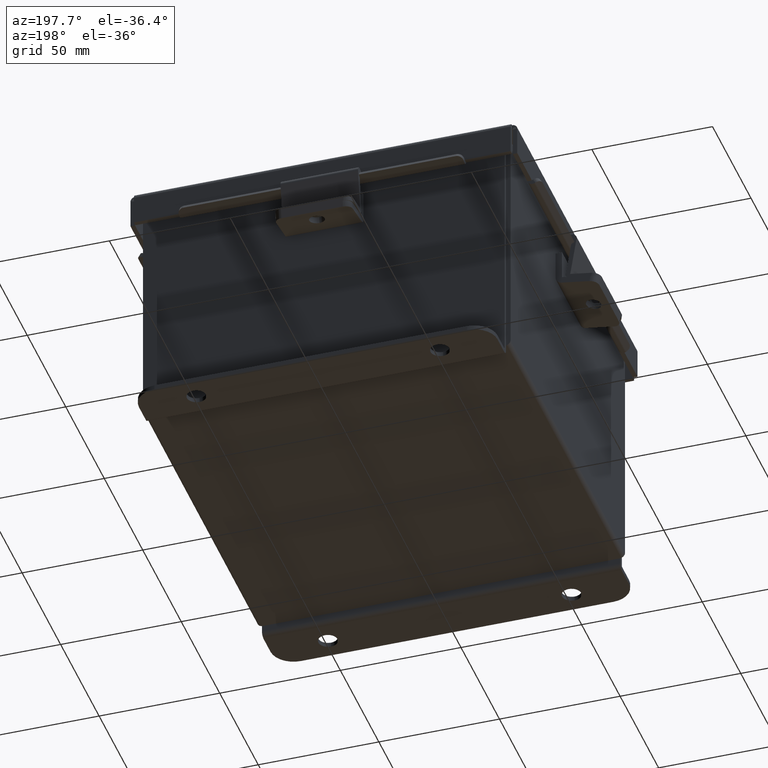
[diagram: clean part render]
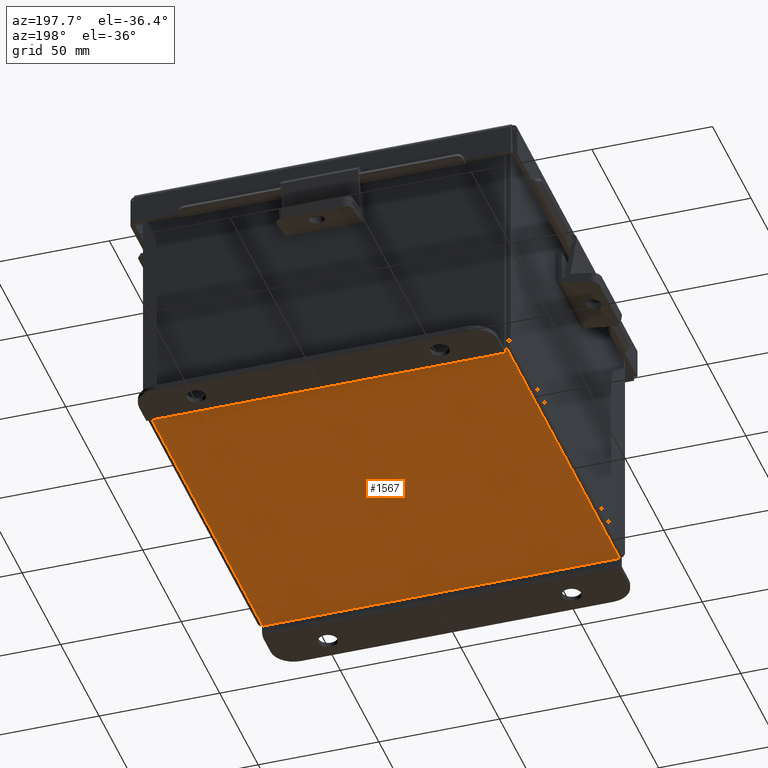
[diagram: same view with one face highlighted and labeled with its STEP entity id]
A machine part, auxiliary view. The second image highlights one B-rep face of the part: STEP entity #1567.
In plain terms, the highlighted planar face has unit normal (0, 0, -1).
Its self-contained STEP definition (entity closure, byte-faithful):
#404 = CARTESIAN_POINT ( 'NONE',  ( -2.912299999999998800, -2.925299999999999600, -0.07469999999999943400 ) ) ;
#439 = ORIENTED_EDGE ( 'NONE', *, *, #6130, .T. ) ;
#718 = DIRECTION ( 'NONE',  ( 0.0000000000000000000, 0.0000000000000000000, -1.000000000000000000 ) ) ;
#832 = ORIENTED_EDGE ( 'NONE', *, *, #4310, .F. ) ;
#1449 = VECTOR ( 'NONE', #8382, 39.37007874015748100 ) ;
#1567 = ADVANCED_FACE ( 'NONE', ( #1693 ), #1916, .T. ) ;
#1693 = FACE_OUTER_BOUND ( 'NONE', #4345, .T. ) ;
#1828 = VECTOR ( 'NONE', #4315, 39.37007874015748100 ) ;
#1899 = EDGE_CURVE ( 'NONE', #8961, #3152, #7471, .T. ) ;
#1916 = PLANE ( 'NONE',  #7822 ) ;
#2221 = CARTESIAN_POINT ( 'NONE',  ( 0.0000000000000000000, 0.0000000000000000000, -0.07470000000000000300 ) ) ;
#2458 = CARTESIAN_POINT ( 'NONE',  ( 2.912300000000001000, -2.925299999999999100, -0.07470000000000000300 ) ) ;
#3152 = VERTEX_POINT ( 'NONE', #8850 ) ;
#3590 = LINE ( 'NONE', #404, #8598 ) ;
#3939 = CARTESIAN_POINT ( 'NONE',  ( 2.912300000000001000, 2.925300000000000500, -0.07469999999999994700 ) ) ;
#4096 = LINE ( 'NONE', #8411, #1449 ) ;
#4284 = VECTOR ( 'NONE', #9183, 39.37007874015748100 ) ;
#4310 = EDGE_CURVE ( 'NONE', #9148, #8816, #4096, .T. ) ;
#4315 = DIRECTION ( 'NONE',  ( -1.000000000000000000, -0.0000000000000000000, -0.0000000000000000000 ) ) ;
#4345 = EDGE_LOOP ( 'NONE', ( #9593, #8355, #832, #439 ) ) ;
#5581 = DIRECTION ( 'NONE',  ( -0.0000000000000000000, 1.000000000000000000, -8.208677865577646300E-017 ) ) ;
#5850 = DIRECTION ( 'NONE',  ( -1.000000000000000000, 0.0000000000000000000, -0.0000000000000000000 ) ) ;
#6011 = EDGE_CURVE ( 'NONE', #8961, #8816, #9185, .T. ) ;
#6130 = EDGE_CURVE ( 'NONE', #9148, #3152, #3590, .T. ) ;
#6177 = CARTESIAN_POINT ( 'NONE',  ( -2.912299999999998800, -2.925299999999999100, -0.07469999999999943400 ) ) ;
#6704 = CARTESIAN_POINT ( 'NONE',  ( -2.999999999999999100, 2.925300000000000500, -0.07470000000000000300 ) ) ;
#7471 = LINE ( 'NONE', #6704, #1828 ) ;
#7822 = AXIS2_PLACEMENT_3D ( 'NONE', #2221, #718, #5850 ) ;
#8355 = ORIENTED_EDGE ( 'NONE', *, *, #6011, .T. ) ;
#8382 = DIRECTION ( 'NONE',  ( 1.000000000000000000, 0.0000000000000000000, 0.0000000000000000000 ) ) ;
#8411 = CARTESIAN_POINT ( 'NONE',  ( -2.999999999999999100, -2.925299999999999600, -0.07470000000000000300 ) ) ;
#8598 = VECTOR ( 'NONE', #5581, 39.37007874015748100 ) ;
#8816 = VERTEX_POINT ( 'NONE', #2458 ) ;
#8850 = CARTESIAN_POINT ( 'NONE',  ( -2.912299999999998800, 2.925300000000000500, -0.07470000000000000300 ) ) ;
#8961 = VERTEX_POINT ( 'NONE', #9232 ) ;
#9148 = VERTEX_POINT ( 'NONE', #6177 ) ;
#9183 = DIRECTION ( 'NONE',  ( -0.0000000000000000000, -1.000000000000000000, -0.0000000000000000000 ) ) ;
#9185 = LINE ( 'NONE', #3939, #4284 ) ;
#9232 = CARTESIAN_POINT ( 'NONE',  ( 2.912300000000001000, 2.925300000000000000, -0.07469999999999994700 ) ) ;
#9593 = ORIENTED_EDGE ( 'NONE', *, *, #1899, .F. ) ;